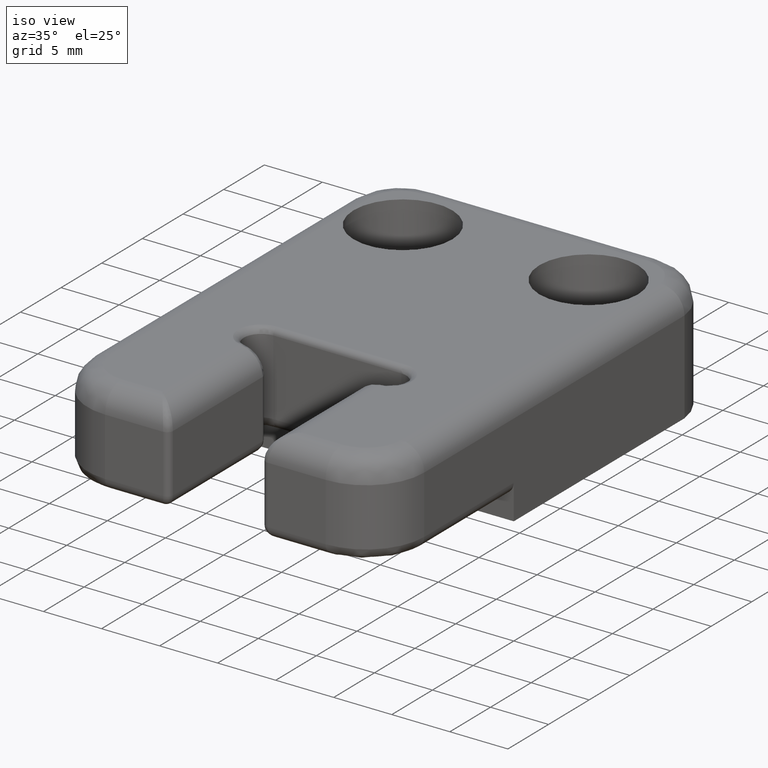
[diagram: clean part render]
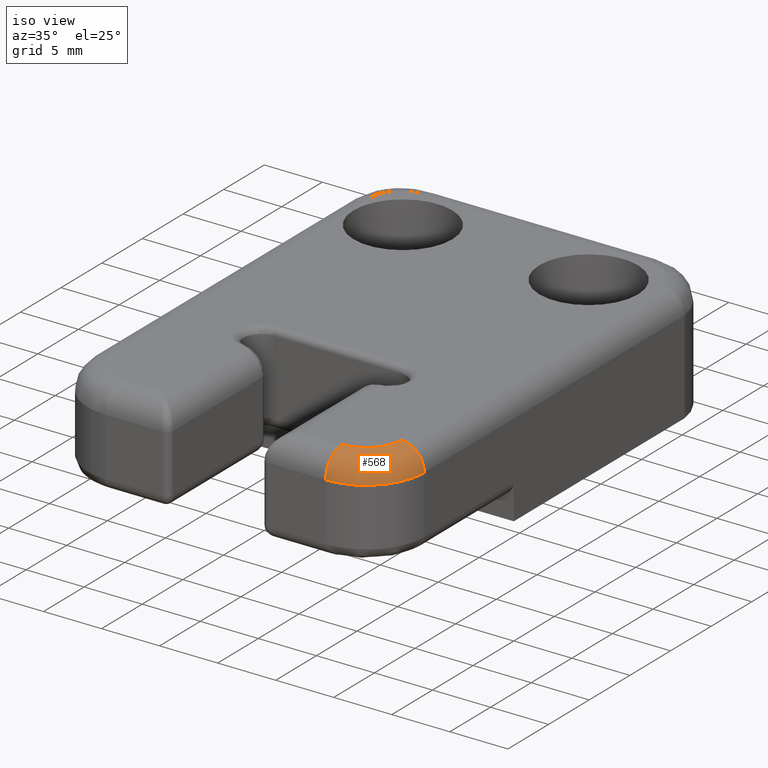
[diagram: same view with one face highlighted and labeled with its STEP entity id]
A machine part, iso view. The second image highlights one B-rep face of the part: STEP entity #568.
In plain terms, the highlighted face is a freeform B-spline surface patch.
Its self-contained STEP definition (entity closure, byte-faithful):
#153=CARTESIAN_POINT('',(9.500000000005457,-16.003970467913632,8.0));
#154=VERTEX_POINT('',#153);
#161=CARTESIAN_POINT('',(9.500000000005457,-14.003970467913632,10.0));
#162=VERTEX_POINT('',#161);
#163=CARTESIAN_POINT('',(9.500000000005457,-14.003970467913632,8.0));
#164=DIRECTION('',(1.0,0.0,0.0));
#165=DIRECTION('',(0.0,0.0,1.0));
#166=AXIS2_PLACEMENT_3D('',#163,#164,#165);
#167=CIRCLE('',#166,2.0);
#168=EDGE_CURVE('',#162,#154,#167,.T.);
#349=CARTESIAN_POINT('',(12.500000000004547,-11.003970467914655,10.0));
#350=VERTEX_POINT('',#349);
#357=CARTESIAN_POINT('',(14.500000000004547,-11.003970467914655,8.0));
#358=VERTEX_POINT('',#357);
#359=CARTESIAN_POINT('',(12.500000000004547,-11.003970467914655,8.0));
#360=DIRECTION('',(0.0,1.0,0.0));
#361=DIRECTION('',(0.0,0.0,1.0));
#362=AXIS2_PLACEMENT_3D('',#359,#360,#361);
#363=CIRCLE('',#362,2.0);
#364=EDGE_CURVE('',#350,#358,#363,.T.);
#500=CARTESIAN_POINT('',(9.500000000005457,-14.003970467913632,10.0));
#501=CARTESIAN_POINT('',(9.500000000005457,-14.264090897268471,10.0));
#502=CARTESIAN_POINT('',(9.500000000005455,-14.790026102600180,9.895922447768440));
#503=CARTESIAN_POINT('',(9.500000000005461,-15.454796290859532,9.450825822945898));
#504=CARTESIAN_POINT('',(9.500000000005455,-15.899892915682074,8.786055634686550));
#505=CARTESIAN_POINT('',(9.500000000005457,-16.003970467913632,8.260120429354839));
#506=CARTESIAN_POINT('',(9.500000000005457,-16.003970467913632,8.0));
#507=CARTESIAN_POINT('',(9.890180644037582,-14.003970467913636,10.0));
#508=CARTESIAN_POINT('',(9.924011962921453,-14.264090897268474,10.0));
#509=CARTESIAN_POINT('',(9.992415208633306,-14.790026102600180,9.895922447768440));
#510=CARTESIAN_POINT('',(10.078875362029470,-15.454796290859532,9.450825822945898));
#511=CARTESIAN_POINT('',(10.136764724606081,-15.899892915682074,8.786055634686550));
#512=CARTESIAN_POINT('',(10.150301073392418,-16.003970467913636,8.260120429354839));
#513=CARTESIAN_POINT('',(10.150301073392418,-16.003970467913636,8.0));
#514=CARTESIAN_POINT('',(10.679083452034881,-13.847854139566344,9.999999999999998));
#515=CARTESIAN_POINT('',(10.781318016630609,-14.094438220134844,9.999999999999998));
#516=CARTESIAN_POINT('',(10.988025182446119,-14.593004401064896,9.895922447768438));
#517=CARTESIAN_POINT('',(11.249298358572569,-15.223180762328976,9.450825822945896));
#518=CARTESIAN_POINT('',(11.424233713533432,-15.645115103542484,8.786055634686548));
#519=CARTESIAN_POINT('',(11.465139086721429,-15.743776587334789,8.260120429354837));
#520=CARTESIAN_POINT('',(11.465139086721429,-15.743776587334789,7.999999999999998));
#521=CARTESIAN_POINT('',(11.676238734423558,-13.180209202332755,10.0));
#522=CARTESIAN_POINT('',(11.864933452415441,-13.368903920324641,10.0));
#523=CARTESIAN_POINT('',(12.246453640961235,-13.750424108870437,9.895922447768438));
#524=CARTESIAN_POINT('',(12.728686518686873,-14.232656986596076,9.450825822945898));
#525=CARTESIAN_POINT('',(13.051565357186176,-14.555535825095372,8.786055634686550));
#526=CARTESIAN_POINT('',(13.127064557369447,-14.631035025278653,8.260120429354839));
#527=CARTESIAN_POINT('',(13.127064557369447,-14.631035025278653,8.0));
#528=CARTESIAN_POINT('',(12.343883671657146,-12.183053919944081,10.0));
#529=CARTESIAN_POINT('',(12.590467752225651,-12.285288484539810,10.0));
#530=CARTESIAN_POINT('',(13.089033933155704,-12.491995650355314,9.895922447768442));
#531=CARTESIAN_POINT('',(13.719210294419785,-12.753268826481769,9.450825822945898));
#532=CARTESIAN_POINT('',(14.141144635633285,-12.928204181442631,8.786055634686552));
#533=CARTESIAN_POINT('',(14.239806119425594,-12.969109554630627,8.260120429354839));
#534=CARTESIAN_POINT('',(14.239806119425594,-12.969109554630627,8.0));
#535=CARTESIAN_POINT('',(12.500000000004439,-11.394151111946778,10.0));
#536=CARTESIAN_POINT('',(12.760120429359276,-11.427982430830651,10.0));
#537=CARTESIAN_POINT('',(13.286055634690980,-11.496385676542502,9.895922447768440));
#538=CARTESIAN_POINT('',(13.950825822950330,-11.582845829938668,9.450825822945898));
#539=CARTESIAN_POINT('',(14.395922447772872,-11.640735192515278,8.786055634686550));
#540=CARTESIAN_POINT('',(14.500000000004434,-11.654271541301616,8.260120429354839));
#541=CARTESIAN_POINT('',(14.500000000004434,-11.654271541301616,8.0));
#542=CARTESIAN_POINT('',(12.500000000004434,-11.003970467914655,10.0));
#543=CARTESIAN_POINT('',(12.760120429359272,-11.003970467914655,10.0));
#544=CARTESIAN_POINT('',(13.286055634690982,-11.003970467914652,9.895922447768440));
#545=CARTESIAN_POINT('',(13.950825822950332,-11.003970467914659,9.450825822945898));
#546=CARTESIAN_POINT('',(14.395922447772875,-11.003970467914653,8.786055634686550));
#547=CARTESIAN_POINT('',(14.500000000004434,-11.003970467914655,8.260120429354839));
#548=CARTESIAN_POINT('',(14.500000000004434,-11.003970467914655,8.0));
#549=B_SPLINE_SURFACE_WITH_KNOTS('',3,3,((#500,#507,#514,#521,#528,#535,#542),(#501,#508,#515,#522,#529,#536,#543),(#502,#509,#516,#523,#530,#537,#544),(#503,#510,#517,#524,#531,#538,#545),(#504,#511,#518,#525,#532,#539,#546),(#505,#512,#519,#526,#533,#540,#547),(#506,#513,#520,#527,#534,#541,#548)),.UNSPECIFIED.,.F.,.F.,.U.,(4,1,1,1,4),(4,1,1,1,4),(0.0,0.780361288064513,1.560722576129026,2.341083864193540,3.121445152258053),(0.0,1.640892173064114,3.281784346128228,4.922676519192342,6.563568692256456),.UNSPECIFIED.);
#550=ORIENTED_EDGE('',*,*,#168,.T.);
#551=CARTESIAN_POINT('',(9.500000000005457,-11.003970467914655,8.0));
#552=DIRECTION('',(0.0,0.0,1.0));
#553=DIRECTION('',(0.0,-1.0,0.0));
#554=AXIS2_PLACEMENT_3D('',#551,#552,#553);
#555=CIRCLE('',#554,4.999999999998977);
#556=EDGE_CURVE('',#154,#358,#555,.T.);
#557=ORIENTED_EDGE('',*,*,#556,.T.);
#558=ORIENTED_EDGE('',*,*,#364,.F.);
#559=CARTESIAN_POINT('',(9.500000000005457,-11.003970467914655,10.0));
#560=DIRECTION('',(0.0,0.0,1.0));
#561=DIRECTION('',(0.0,-1.0,0.0));
#562=AXIS2_PLACEMENT_3D('',#559,#560,#561);
#563=CIRCLE('',#562,2.999999999998977);
#564=EDGE_CURVE('',#162,#350,#563,.T.);
#565=ORIENTED_EDGE('',*,*,#564,.F.);
#566=EDGE_LOOP('',(#550,#557,#558,#565));
#567=FACE_OUTER_BOUND('',#566,.T.);
#568=ADVANCED_FACE('',(#567),#549,.T.);